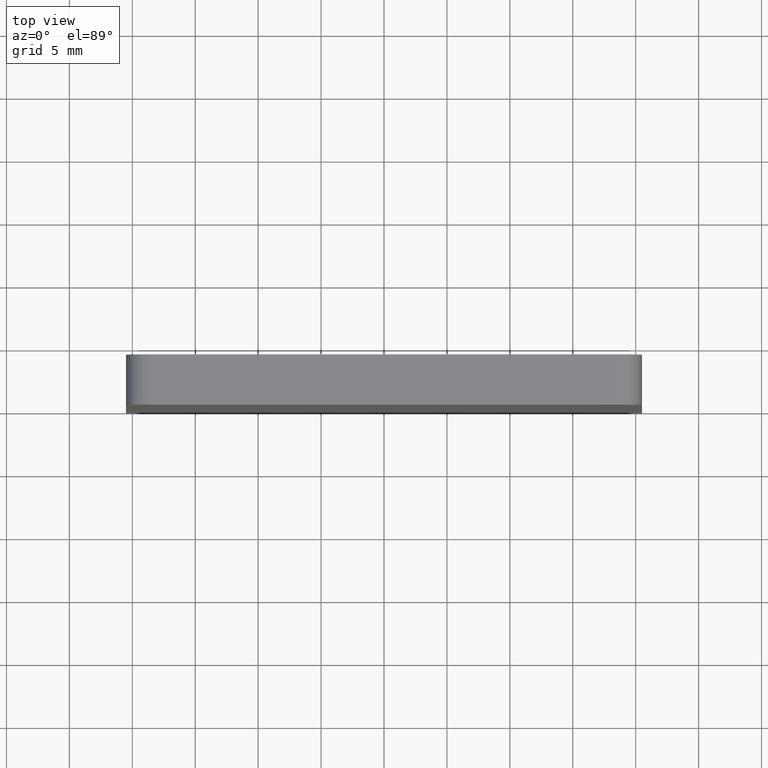
[diagram: clean part render]
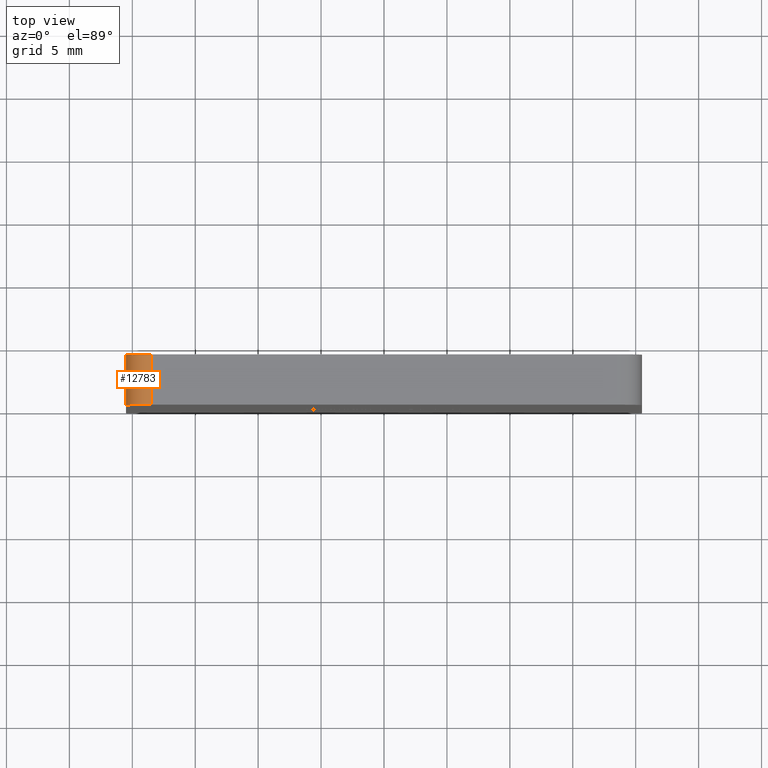
[diagram: same view with one face highlighted and labeled with its STEP entity id]
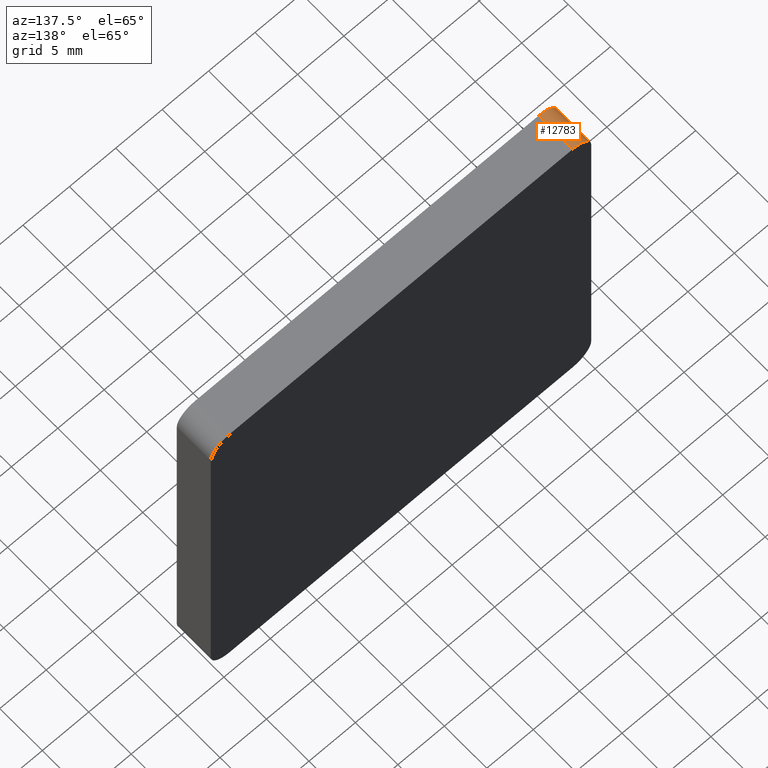
[diagram: same view with one face highlighted and labeled with its STEP entity id]
A machine part, top view. The second image highlights one B-rep face of the part: STEP entity #12783.
A second angle (auxiliary view) of the same face is appended — the face is thin or edge-on in the first view.
In plain terms, the highlighted cylindrical surface (edge-blend (fillet) strip) has radius 2 mm, axis along (0, -1, 0).
Its self-contained STEP definition (entity closure, byte-faithful):
#546 = CARTESIAN_POINT ( 'NONE',  ( -18.49999999999999645, 4.000000000000000000, 18.50000000000000355 ) ) ;
#996 = ORIENTED_EDGE ( 'NONE', *, *, #13277, .F. ) ;
#1014 = AXIS2_PLACEMENT_3D ( 'NONE', #546, #4002, #8689 ) ;
#1429 = VECTOR ( 'NONE', #4389, 1000.000000000000000 ) ;
#1446 = DIRECTION ( 'NONE',  ( -0.000000000000000000, 1.000000000000000000, -0.000000000000000000 ) ) ;
#2000 = FACE_OUTER_BOUND ( 'NONE', #11403, .T. ) ;
#2301 = CARTESIAN_POINT ( 'NONE',  ( -20.49999999999999645, 4.000000000000000000, 18.50000000000000355 ) ) ;
#2795 = CARTESIAN_POINT ( 'NONE',  ( -20.49999999999999645, 0.000000000000000000, 18.50000000000000355 ) ) ;
#2979 = CARTESIAN_POINT ( 'NONE',  ( -18.49999999999999645, 4.000000000000000000, 18.50000000000000355 ) ) ;
#2988 = CARTESIAN_POINT ( 'NONE',  ( -18.49999999999999645, 4.000000000000000000, 20.50000000000000355 ) ) ;
#3554 = VERTEX_POINT ( 'NONE', #2795 ) ;
#3962 = AXIS2_PLACEMENT_3D ( 'NONE', #2979, #7530, #11002 ) ;
#4002 = DIRECTION ( 'NONE',  ( 0.000000000000000000, 1.000000000000000000, 0.000000000000000000 ) ) ;
#4026 = CIRCLE ( 'NONE', #1014, 2.000000000000001776 ) ;
#4389 = DIRECTION ( 'NONE',  ( 0.000000000000000000, -1.000000000000000000, 0.000000000000000000 ) ) ;
#4453 = AXIS2_PLACEMENT_3D ( 'NONE', #13018, #14180, #8353 ) ;
#5777 = EDGE_CURVE ( 'NONE', #3554, #12676, #7801, .T. ) ;
#6956 = ORIENTED_EDGE ( 'NONE', *, *, #5777, .F. ) ;
#7434 = EDGE_CURVE ( 'NONE', #12676, #11505, #4026, .T. ) ;
#7530 = DIRECTION ( 'NONE',  ( 0.000000000000000000, -1.000000000000000000, 0.000000000000000000 ) ) ;
#7801 = LINE ( 'NONE', #8223, #14196 ) ;
#8223 = CARTESIAN_POINT ( 'NONE',  ( -20.49999999999999645, 4.000000000000000000, 18.50000000000000355 ) ) ;
#8353 = DIRECTION ( 'NONE',  ( 0.000000000000000000, 0.000000000000000000, 1.000000000000000000 ) ) ;
#8427 = ORIENTED_EDGE ( 'NONE', *, *, #13510, .F. ) ;
#8689 = DIRECTION ( 'NONE',  ( 0.000000000000000000, 0.000000000000000000, 1.000000000000000000 ) ) ;
#8906 = ORIENTED_EDGE ( 'NONE', *, *, #7434, .F. ) ;
#8922 = CIRCLE ( 'NONE', #4453, 2.000000000000001776 ) ;
#11002 = DIRECTION ( 'NONE',  ( 0.000000000000000000, 0.000000000000000000, -1.000000000000000000 ) ) ;
#11377 = CARTESIAN_POINT ( 'NONE',  ( -18.49999999999999645, 4.000000000000000000, 20.50000000000000355 ) ) ;
#11403 = EDGE_LOOP ( 'NONE', ( #8906, #6956, #996, #8427 ) ) ;
#11505 = VERTEX_POINT ( 'NONE', #2988 ) ;
#12029 = LINE ( 'NONE', #11377, #1429 ) ;
#12045 = CYLINDRICAL_SURFACE ( 'NONE', #3962, 2.000000000000001776 ) ;
#12676 = VERTEX_POINT ( 'NONE', #2301 ) ;
#12783 = ADVANCED_FACE ( 'NONE', ( #2000 ), #12045, .T. ) ;
#13018 = CARTESIAN_POINT ( 'NONE',  ( -18.49999999999999645, 0.000000000000000000, 18.50000000000000355 ) ) ;
#13277 = EDGE_CURVE ( 'NONE', #14713, #3554, #8922, .T. ) ;
#13465 = CARTESIAN_POINT ( 'NONE',  ( -18.49999999999999645, 0.000000000000000000, 20.50000000000000355 ) ) ;
#13510 = EDGE_CURVE ( 'NONE', #11505, #14713, #12029, .T. ) ;
#14180 = DIRECTION ( 'NONE',  ( -0.000000000000000000, -1.000000000000000000, -0.000000000000000000 ) ) ;
#14196 = VECTOR ( 'NONE', #1446, 1000.000000000000000 ) ;
#14713 = VERTEX_POINT ( 'NONE', #13465 ) ;